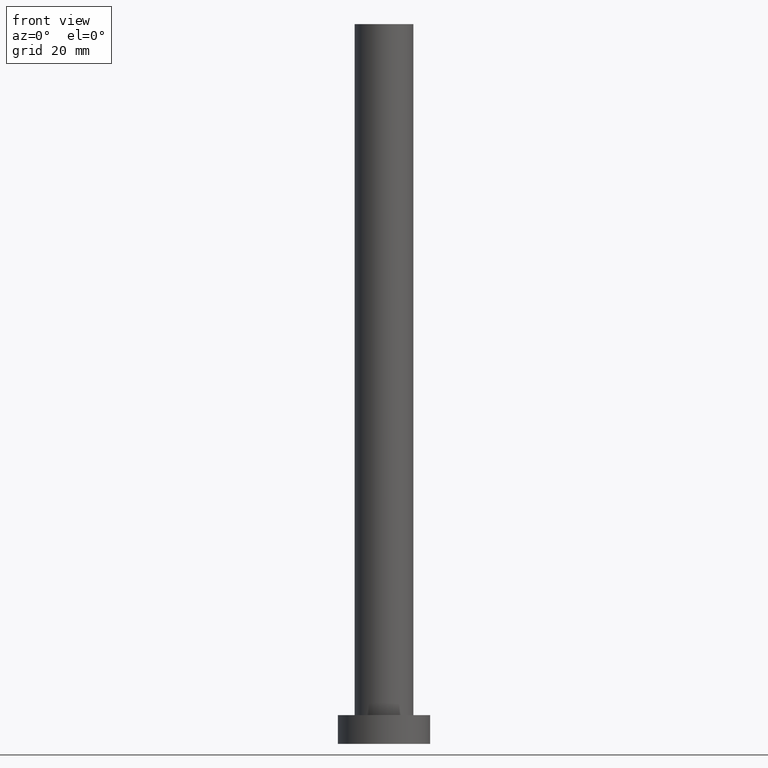
[diagram: clean part render]
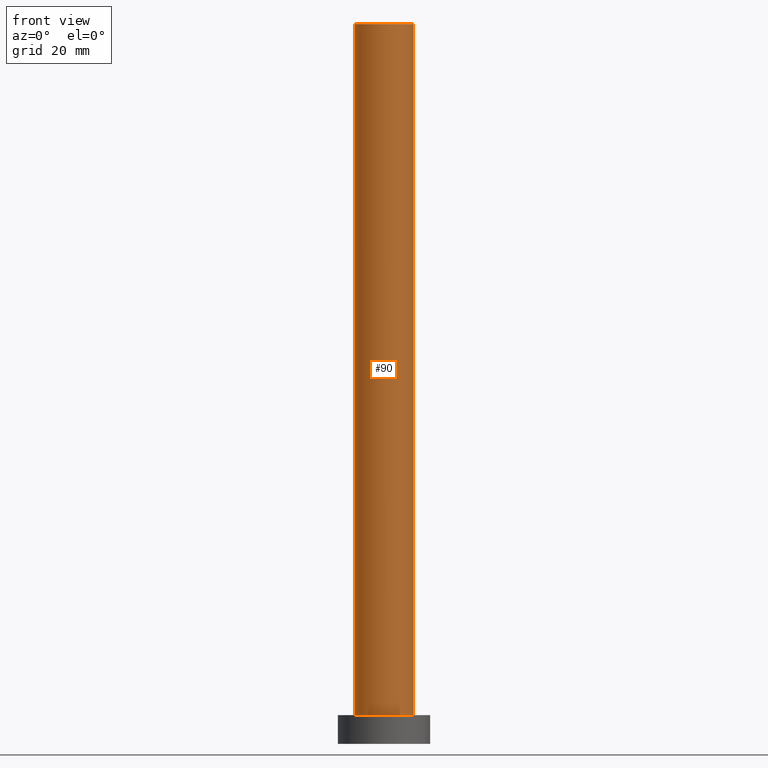
[diagram: same view with one face highlighted and labeled with its STEP entity id]
A machine part, front view. The second image highlights one B-rep face of the part: STEP entity #90.
In plain terms, the highlighted cylindrical surface (edge-blend (fillet) strip) has radius 5.1 mm, axis along (-0, -0, -1).
Its self-contained STEP definition (entity closure, byte-faithful):
#7 = DIRECTION ( 'NONE',  ( -0.000000000000000000, -0.000000000000000000, -1.000000000000000000 ) ) ;
#12 = CIRCLE ( 'NONE', #103, 5.099999999999999645 ) ;
#27 = FACE_OUTER_BOUND ( 'NONE', #184, .T. ) ;
#31 = DIRECTION ( 'NONE',  ( 0.000000000000000000, 0.000000000000000000, 1.000000000000000000 ) ) ;
#37 = VECTOR ( 'NONE', #143, 1000.000000000000000 ) ;
#40 = VERTEX_POINT ( 'NONE', #89 ) ;
#43 = CARTESIAN_POINT ( 'NONE',  ( -5.099999999999999645, 0.000000000000000000, 125.0000000000000000 ) ) ;
#44 = DIRECTION ( 'NONE',  ( -1.000000000000000000, 0.000000000000000000, 0.000000000000000000 ) ) ;
#45 = ORIENTED_EDGE ( 'NONE', *, *, #212, .T. ) ;
#58 = ORIENTED_EDGE ( 'NONE', *, *, #86, .T. ) ;
#64 = AXIS2_PLACEMENT_3D ( 'NONE', #107, #240, #44 ) ;
#78 = DIRECTION ( 'NONE',  ( 1.000000000000000000, 0.000000000000000000, 0.000000000000000000 ) ) ;
#82 = VERTEX_POINT ( 'NONE', #132 ) ;
#83 = CYLINDRICAL_SURFACE ( 'NONE', #64, 5.099999999999999645 ) ;
#86 = EDGE_CURVE ( 'NONE', #156, #82, #163, .T. ) ;
#89 = CARTESIAN_POINT ( 'NONE',  ( 5.099999999999999645, 6.245698675651500839E-16, 125.0000000000000000 ) ) ;
#90 = ADVANCED_FACE ( 'NONE', ( #27 ), #83, .T. ) ;
#94 = DIRECTION ( 'NONE',  ( 0.000000000000000000, 0.000000000000000000, 1.000000000000000000 ) ) ;
#95 = EDGE_CURVE ( 'NONE', #40, #127, #207, .T. ) ;
#100 = CARTESIAN_POINT ( 'NONE',  ( 5.099999999999999645, 6.245698675651500839E-16, 5.000000000000000000 ) ) ;
#103 = AXIS2_PLACEMENT_3D ( 'NONE', #233, #94, #78 ) ;
#107 = CARTESIAN_POINT ( 'NONE',  ( 0.000000000000000000, 0.000000000000000000, 125.0000000000000000 ) ) ;
#110 = CIRCLE ( 'NONE', #115, 5.099999999999999645 ) ;
#114 = EDGE_CURVE ( 'NONE', #156, #40, #12, .T. ) ;
#115 = AXIS2_PLACEMENT_3D ( 'NONE', #198, #31, #153 ) ;
#127 = VERTEX_POINT ( 'NONE', #100 ) ;
#132 = CARTESIAN_POINT ( 'NONE',  ( -5.099999999999999645, 0.000000000000000000, 5.000000000000000000 ) ) ;
#143 = DIRECTION ( 'NONE',  ( -0.000000000000000000, -0.000000000000000000, -1.000000000000000000 ) ) ;
#153 = DIRECTION ( 'NONE',  ( 1.000000000000000000, 0.000000000000000000, 0.000000000000000000 ) ) ;
#156 = VERTEX_POINT ( 'NONE', #43 ) ;
#163 = LINE ( 'NONE', #213, #37 ) ;
#174 = VECTOR ( 'NONE', #7, 1000.000000000000000 ) ;
#182 = ORIENTED_EDGE ( 'NONE', *, *, #95, .F. ) ;
#184 = EDGE_LOOP ( 'NONE', ( #182, #237, #58, #45 ) ) ;
#187 = CARTESIAN_POINT ( 'NONE',  ( 5.099999999999999645, 6.245698675651500839E-16, 125.0000000000000000 ) ) ;
#198 = CARTESIAN_POINT ( 'NONE',  ( 0.000000000000000000, 0.000000000000000000, 5.000000000000000000 ) ) ;
#207 = LINE ( 'NONE', #187, #174 ) ;
#212 = EDGE_CURVE ( 'NONE', #82, #127, #110, .T. ) ;
#213 = CARTESIAN_POINT ( 'NONE',  ( -5.099999999999999645, 0.000000000000000000, 125.0000000000000000 ) ) ;
#233 = CARTESIAN_POINT ( 'NONE',  ( 0.000000000000000000, 0.000000000000000000, 125.0000000000000000 ) ) ;
#237 = ORIENTED_EDGE ( 'NONE', *, *, #114, .F. ) ;
#240 = DIRECTION ( 'NONE',  ( -0.000000000000000000, -0.000000000000000000, -1.000000000000000000 ) ) ;